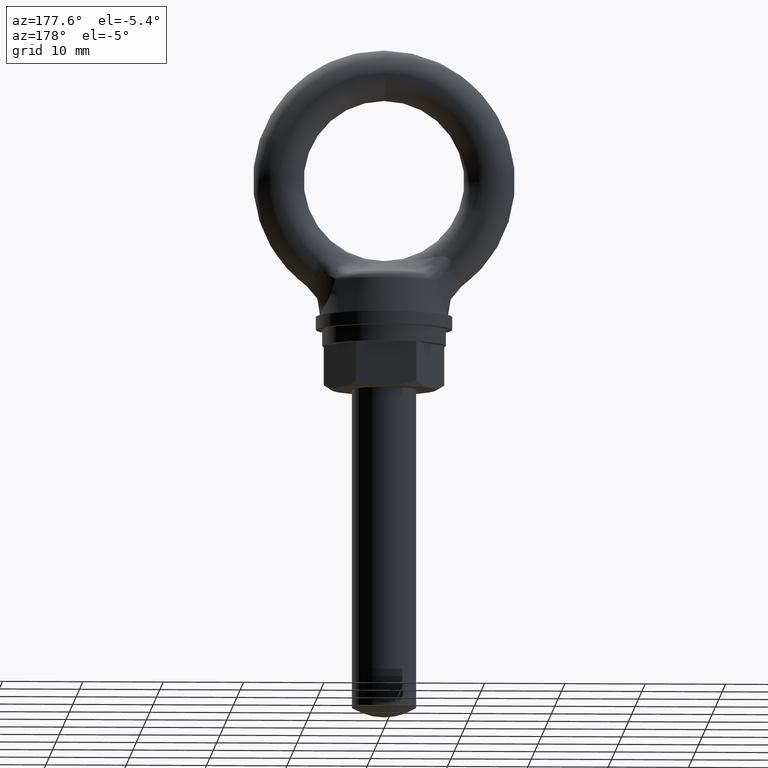
[diagram: clean part render]
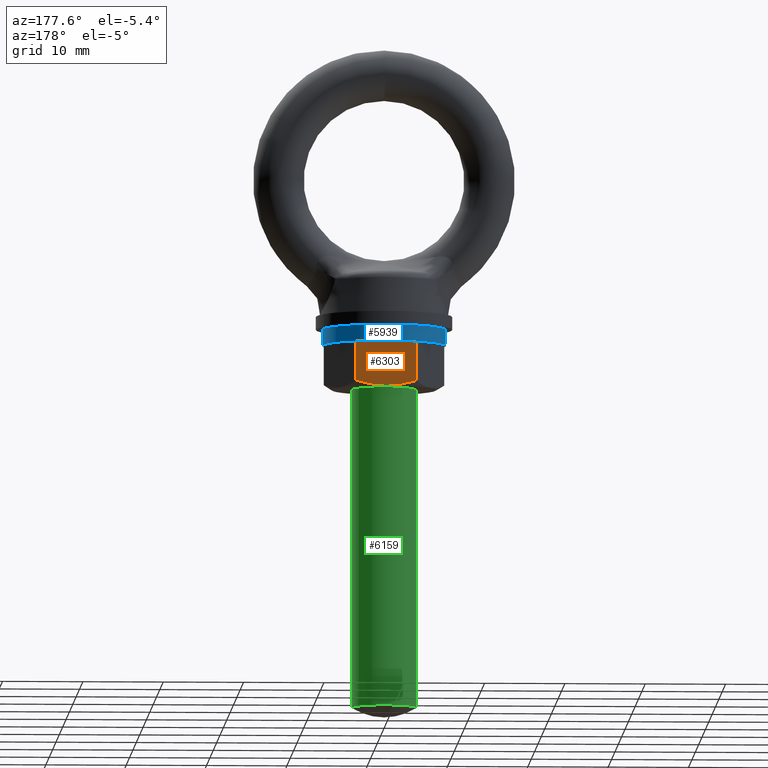
[diagram: same view with three faces highlighted in distinct colors, each labeled with its STEP entity id]
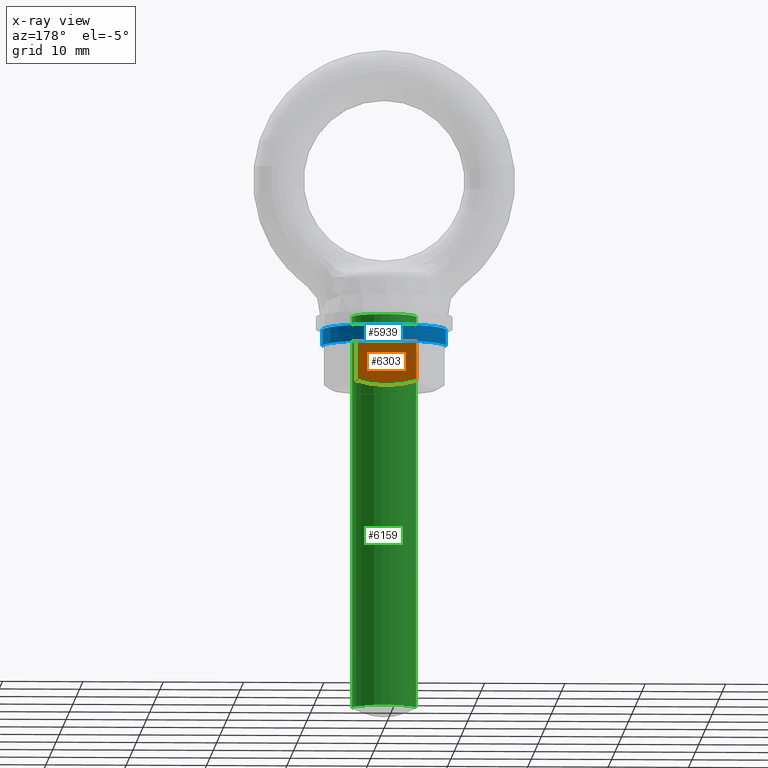
[diagram: x-ray of the same camera — body ghosted, the three highlighted faces saturated]
A machine part, auxiliary view with three faces highlighted in distinct colors.
The next image is the same camera in x-ray (body ghosted, the three faces saturated) — at least one of them is partly hidden behind the body in this view.
Their STEP definitions:

[orange] entity #6303 — the highlighted planar face has unit normal (0, -1, 0).
#1770 = CARTESIAN_POINT ( 'NONE',  ( -3.752777000000000000, 6.500000000000000000, -20.59999900000000000 ) ) ;
#1771 = DIRECTION ( 'NONE',  ( 0.0000000000000000000, 0.0000000000000000000, -1.000000000000000000 ) ) ;
#1793 = CARTESIAN_POINT ( 'NONE',  ( 0.0000000000000000000, 6.500000000000000000, -26.09999900000000000 ) ) ;
#1794 = CARTESIAN_POINT ( 'NONE',  ( -0.6344442158374848900, 6.500000000000000000, -26.09999900000000000 ) ) ;
#1796 = B_SPLINE_CURVE_WITH_KNOTS ( 'NONE', 3,
 ( #1824, #1823, #1822, #1821, #1820, #1819 ),
 .UNSPECIFIED., .F., .F.,
 ( 4, 2, 4 ),
 ( 0.01059243682355596100, 0.01249240858980489600, 0.01439238035605383000 ),
 .UNSPECIFIED. ) ;
#1814 = DIRECTION ( 'NONE',  ( -1.000000000000000000, 0.0000000000000000000, 0.0000000000000000000 ) ) ;
#1815 = CARTESIAN_POINT ( 'NONE',  ( -1.264489715027497900, 6.499999999999999100, -26.04544581051616300 ) ) ;
#1819 = CARTESIAN_POINT ( 'NONE',  ( 3.752777000000000000, 6.500000000000000000, -25.51944234415325100 ) ) ;
#1820 = CARTESIAN_POINT ( 'NONE',  ( 3.145911392161524000, 6.500000000000000000, -25.69462936393921700 ) ) ;
#1821 = CARTESIAN_POINT ( 'NONE',  ( 2.531202255451287200, 6.499999999999999100, -25.84048179477989700 ) ) ;
#1822 = CARTESIAN_POINT ( 'NONE',  ( 1.278181636237465400, 6.500000000000000900, -26.04391451221191300 ) ) ;
#1823 = CARTESIAN_POINT ( 'NONE',  ( 0.6348589623779732300, 6.500000000000000000, -26.09999899999999700 ) ) ;
#1824 = CARTESIAN_POINT ( 'NONE',  ( 0.0000000000000000000, 6.500000000000000000, -26.09999900000000000 ) ) ;
#1853 = CARTESIAN_POINT ( 'NONE',  ( 0.0000000000000000000, 6.500000000000000000, -26.09999900000000000 ) ) ;
#1854 = VECTOR ( 'NONE', #1814, 1000.000000000000000 ) ;
#1855 = CARTESIAN_POINT ( 'NONE',  ( 3.752777000000000000, 6.500000000000000000, -20.59999900000000000 ) ) ;
#1856 = LINE ( 'NONE', #1855, #1854 ) ;
#1862 = CARTESIAN_POINT ( 'NONE',  ( -3.752777000000000000, 6.500000000000000000, -25.51944234415325100 ) ) ;
#1863 = VECTOR ( 'NONE', #1771, 1000.000000000000000 ) ;
#1864 = CARTESIAN_POINT ( 'NONE',  ( -3.752777000000000000, 6.500000000000000000, 973.9000009999999700 ) ) ;
#1865 = LINE ( 'NONE', #1864, #1863 ) ;
#2309 = CARTESIAN_POINT ( 'NONE',  ( -2.517090823674052100, 6.500000000000000900, -25.84344929867812700 ) ) ;
#2310 = CARTESIAN_POINT ( 'NONE',  ( -3.142127912512926900, 6.500000000000000000, -25.69572156049065000 ) ) ;
#2311 = CARTESIAN_POINT ( 'NONE',  ( -3.752777000000000000, 6.500000000000000000, -25.51944234415325100 ) ) ;
#2317 = B_SPLINE_CURVE_WITH_KNOTS ( 'NONE', 3,
 ( #2311, #2310, #2309, #1815, #1794, #1793 ),
 .UNSPECIFIED., .F., .F.,
 ( 4, 2, 4 ),
 ( 0.006794975753348991700, 0.008693706288452476100, 0.01059243682355596100 ),
 .UNSPECIFIED. ) ;
#2319 = DIRECTION ( 'NONE',  ( 0.0000000000000000000, 0.0000000000000000000, -1.000000000000000000 ) ) ;
#2320 = DIRECTION ( 'NONE',  ( 0.0000000000000000000, -1.000000000000000000, 0.0000000000000000000 ) ) ;
#2321 = CARTESIAN_POINT ( 'NONE',  ( 3.752777000000000000, 6.500000000000000000, 973.9000009999999700 ) ) ;
#2330 = PLANE ( 'NONE',  #2332 ) ;
#2332 = AXIS2_PLACEMENT_3D ( 'NONE', #2321, #2320, #2319 ) ;
#2333 = FACE_OUTER_BOUND ( 'NONE', #6304, .T. ) ;
#2423 = CARTESIAN_POINT ( 'NONE',  ( 3.752777000000000000, 6.500000000000000000, -20.59999900000000000 ) ) ;
#2424 = DIRECTION ( 'NONE',  ( 0.0000000000000000000, 0.0000000000000000000, -1.000000000000000000 ) ) ;
#2425 = VECTOR ( 'NONE', #2424, 1000.000000000000000 ) ;
#2426 = CARTESIAN_POINT ( 'NONE',  ( 3.752777000000000000, 6.500000000000000000, 973.9000009999999700 ) ) ;
#2433 = LINE ( 'NONE', #2426, #2425 ) ;
#2435 = CARTESIAN_POINT ( 'NONE',  ( 3.752777000000000000, 6.500000000000000000, -25.51944234415325100 ) ) ;
#6281 = VERTEX_POINT ( 'NONE', #2435 ) ;
#6284 = EDGE_CURVE ( 'NONE', #6285, #6281, #2433, .T. ) ;
#6285 = VERTEX_POINT ( 'NONE', #2423 ) ;
#6303 = ADVANCED_FACE ( 'NONE', ( #2333 ), #2330, .F. ) ;
#6304 = EDGE_LOOP ( 'NONE', ( #6305, #6309, #6312, #6314, #6315 ) ) ;
#6305 = ORIENTED_EDGE ( 'NONE', *, *, #6306, .F. ) ;
#6306 = EDGE_CURVE ( 'NONE', #6307, #6308, #2317, .T. ) ;
#6307 = VERTEX_POINT ( 'NONE', #1862 ) ;
#6308 = VERTEX_POINT ( 'NONE', #1853 ) ;
#6309 = ORIENTED_EDGE ( 'NONE', *, *, #6310, .F. ) ;
#6310 = EDGE_CURVE ( 'NONE', #6311, #6307, #1865, .T. ) ;
#6311 = VERTEX_POINT ( 'NONE', #1770 ) ;
#6312 = ORIENTED_EDGE ( 'NONE', *, *, #6313, .F. ) ;
#6313 = EDGE_CURVE ( 'NONE', #6285, #6311, #1856, .T. ) ;
#6314 = ORIENTED_EDGE ( 'NONE', *, *, #6284, .T. ) ;
#6315 = ORIENTED_EDGE ( 'NONE', *, *, #6326, .F. ) ;
#6326 = EDGE_CURVE ( 'NONE', #6308, #6281, #1796, .T. ) ;

[blue] entity #5939 — the highlighted cylindrical surface (partial cylindrical patch) has radius 7.7 mm, axis along (0, 0, -1).
#5930 = EDGE_CURVE ( 'NONE', #5931, #5937, #6486, .T. ) ;
#5931 = VERTEX_POINT ( 'NONE', #6481 ) ;
#5932 = ORIENTED_EDGE ( 'NONE', *, *, #6013, .F. ) ;
#5935 = ORIENTED_EDGE ( 'NONE', *, *, #5936, .T. ) ;
#5936 = EDGE_CURVE ( 'NONE', #5949, #5937, #6480, .T. ) ;
#5937 = VERTEX_POINT ( 'NONE', #6476 ) ;
#5938 = ORIENTED_EDGE ( 'NONE', *, *, #5930, .F. ) ;
#5939 = ADVANCED_FACE ( 'NONE', ( #6475 ), #6474, .T. ) ;
#5940 = EDGE_LOOP ( 'NONE', ( #5941, #5935, #5938, #5932 ) ) ;
#5941 = ORIENTED_EDGE ( 'NONE', *, *, #5947, .T. ) ;
#5947 = EDGE_CURVE ( 'NONE', #5948, #5949, #6675, .T. ) ;
#5948 = VERTEX_POINT ( 'NONE', #6670 ) ;
#5949 = VERTEX_POINT ( 'NONE', #6669 ) ;
#6013 = EDGE_CURVE ( 'NONE', #5948, #5931, #6201, .T. ) ;
#6201 = LINE ( 'NONE', #6211, #6210 ) ;
#6209 = DIRECTION ( 'NONE',  ( 0.0000000000000000000, 0.0000000000000000000, -1.000000000000000000 ) ) ;
#6210 = VECTOR ( 'NONE', #6209, 1000.000000000000000 ) ;
#6211 = CARTESIAN_POINT ( 'NONE',  ( -7.700000000000000200, 0.0000000000000000000, 979.4000009999999700 ) ) ;
#6468 = DIRECTION ( 'NONE',  ( -1.000000000000000000, 0.0000000000000000000, 0.0000000000000000000 ) ) ;
#6469 = DIRECTION ( 'NONE',  ( 0.0000000000000000000, 0.0000000000000000000, -1.000000000000000000 ) ) ;
#6470 = CARTESIAN_POINT ( 'NONE',  ( 0.0000000000000000000, 0.0000000000000000000, 979.4000009999999700 ) ) ;
#6471 = AXIS2_PLACEMENT_3D ( 'NONE', #6470, #6469, #6468 ) ;
#6474 = CYLINDRICAL_SURFACE ( 'NONE', #6471, 7.700000000000000200 ) ;
#6475 = FACE_OUTER_BOUND ( 'NONE', #5940, .T. ) ;
#6476 = CARTESIAN_POINT ( 'NONE',  ( 7.700000000000000200, 9.429468924432306500E-016, -20.59999900000000000 ) ) ;
#6477 = DIRECTION ( 'NONE',  ( 0.0000000000000000000, 0.0000000000000000000, -1.000000000000000000 ) ) ;
#6478 = VECTOR ( 'NONE', #6477, 1000.000000000000000 ) ;
#6479 = CARTESIAN_POINT ( 'NONE',  ( 7.700000000000000200, 9.429468924432306500E-016, 979.4000009999999700 ) ) ;
#6480 = LINE ( 'NONE', #6479, #6478 ) ;
#6481 = CARTESIAN_POINT ( 'NONE',  ( -7.700000000000000200, 0.0000000000000000000, -20.59999900000000000 ) ) ;
#6482 = DIRECTION ( 'NONE',  ( 1.000000000000000000, 0.0000000000000000000, 0.0000000000000000000 ) ) ;
#6483 = DIRECTION ( 'NONE',  ( 0.0000000000000000000, 0.0000000000000000000, -1.000000000000000000 ) ) ;
#6484 = CARTESIAN_POINT ( 'NONE',  ( 0.0000000000000000000, 0.0000000000000000000, -20.59999900000000000 ) ) ;
#6485 = AXIS2_PLACEMENT_3D ( 'NONE', #6484, #6483, #6482 ) ;
#6486 = CIRCLE ( 'NONE', #6485, 7.700000000000000200 ) ;
#6669 = CARTESIAN_POINT ( 'NONE',  ( 7.700000000000000200, 9.429468924432306500E-016, -18.59999900000000000 ) ) ;
#6670 = CARTESIAN_POINT ( 'NONE',  ( -7.700000000000000200, 0.0000000000000000000, -18.59999900000000000 ) ) ;
#6671 = DIRECTION ( 'NONE',  ( 1.000000000000000000, 0.0000000000000000000, 0.0000000000000000000 ) ) ;
#6672 = DIRECTION ( 'NONE',  ( 0.0000000000000000000, 0.0000000000000000000, -1.000000000000000000 ) ) ;
#6673 = CARTESIAN_POINT ( 'NONE',  ( 0.0000000000000000000, 0.0000000000000000000, -18.59999900000000000 ) ) ;
#6674 = AXIS2_PLACEMENT_3D ( 'NONE', #6673, #6672, #6671 ) ;
#6675 = CIRCLE ( 'NONE', #6674, 7.700000000000000200 ) ;

[green] entity #6159 — the highlighted cylindrical surface (edge-blend (fillet) strip) has radius 4 mm, axis along (0, 0, 1).
#5960 = ORIENTED_EDGE ( 'NONE', *, *, #5961, .T. ) ;
#5961 = EDGE_CURVE ( 'NONE', #6073, #5962, #6646, .T. ) ;
#5962 = VERTEX_POINT ( 'NONE', #6641 ) ;
#5963 = ORIENTED_EDGE ( 'NONE', *, *, #5964, .F. ) ;
#5964 = EDGE_CURVE ( 'NONE', #6053, #5962, #6640, .T. ) ;
#6051 = EDGE_CURVE ( 'NONE', #6052, #6053, #7038, .T. ) ;
#6052 = VERTEX_POINT ( 'NONE', #7033 ) ;
#6053 = VERTEX_POINT ( 'NONE', #7032 ) ;
#6069 = EDGE_LOOP ( 'NONE', ( #6070, #6071, #5960, #5963 ) ) ;
#6070 = ORIENTED_EDGE ( 'NONE', *, *, #6051, .F. ) ;
#6071 = ORIENTED_EDGE ( 'NONE', *, *, #6072, .T. ) ;
#6072 = EDGE_CURVE ( 'NONE', #6052, #6073, #6968, .T. ) ;
#6073 = VERTEX_POINT ( 'NONE', #6957 ) ;
#6159 = ADVANCED_FACE ( 'NONE', ( #7502 ), #7501, .T. ) ;
#6637 = DIRECTION ( 'NONE',  ( 0.0000000000000000000, 0.0000000000000000000, 1.000000000000000000 ) ) ;
#6638 = VECTOR ( 'NONE', #6637, 1000.000000000000000 ) ;
#6639 = CARTESIAN_POINT ( 'NONE',  ( 4.000000000000000000, 0.0000000000000000000, -1016.999999999999900 ) ) ;
#6640 = LINE ( 'NONE', #6639, #6638 ) ;
#6641 = CARTESIAN_POINT ( 'NONE',  ( 4.000000000000000000, 0.0000000000000000000, -17.00000000000000000 ) ) ;
#6642 = DIRECTION ( 'NONE',  ( -1.000000000000000000, 0.0000000000000000000, 0.0000000000000000000 ) ) ;
#6643 = DIRECTION ( 'NONE',  ( 0.0000000000000000000, 0.0000000000000000000, -1.000000000000000000 ) ) ;
#6644 = CARTESIAN_POINT ( 'NONE',  ( 0.0000000000000000000, 0.0000000000000000000, -17.00000000000000000 ) ) ;
#6645 = AXIS2_PLACEMENT_3D ( 'NONE', #6644, #6643, #6642 ) ;
#6646 = CIRCLE ( 'NONE', #6645, 4.000000000000000000 ) ;
#6957 = CARTESIAN_POINT ( 'NONE',  ( -4.000000000000000000, 4.898425415289509000E-016, -17.00000000000000000 ) ) ;
#6958 = DIRECTION ( 'NONE',  ( 0.0000000000000000000, 0.0000000000000000000, 1.000000000000000000 ) ) ;
#6959 = CARTESIAN_POINT ( 'NONE',  ( -4.000000000000000000, 4.898425415289509000E-016, -1016.999999999999900 ) ) ;
#6965 = VECTOR ( 'NONE', #6958, 1000.000000000000000 ) ;
#6968 = LINE ( 'NONE', #6959, #6965 ) ;
#7032 = CARTESIAN_POINT ( 'NONE',  ( 4.000000028050884300, 0.0000000000000000000, -65.80000404743898900 ) ) ;
#7033 = CARTESIAN_POINT ( 'NONE',  ( -4.000000028050884300, 4.898425449640799300E-016, -65.80000404743898900 ) ) ;
#7034 = DIRECTION ( 'NONE',  ( -1.000000000000000000, 0.0000000000000000000, 0.0000000000000000000 ) ) ;
#7035 = DIRECTION ( 'NONE',  ( 0.0000000000000000000, 0.0000000000000000000, -1.000000000000000000 ) ) ;
#7036 = CARTESIAN_POINT ( 'NONE',  ( 0.0000000000000000000, 0.0000000000000000000, -65.80000404743898900 ) ) ;
#7037 = AXIS2_PLACEMENT_3D ( 'NONE', #7036, #7035, #7034 ) ;
#7038 = CIRCLE ( 'NONE', #7037, 4.000000028050884300 ) ;
#7425 = DIRECTION ( 'NONE',  ( 1.000000000000000000, 0.0000000000000000000, 0.0000000000000000000 ) ) ;
#7426 = DIRECTION ( 'NONE',  ( 0.0000000000000000000, 0.0000000000000000000, 1.000000000000000000 ) ) ;
#7427 = AXIS2_PLACEMENT_3D ( 'NONE', #7499, #7426, #7425 ) ;
#7499 = CARTESIAN_POINT ( 'NONE',  ( 0.0000000000000000000, 0.0000000000000000000, -1016.999999999999900 ) ) ;
#7501 = CYLINDRICAL_SURFACE ( 'NONE', #7427, 4.000000000000000000 ) ;
#7502 = FACE_OUTER_BOUND ( 'NONE', #6069, .T. ) ;